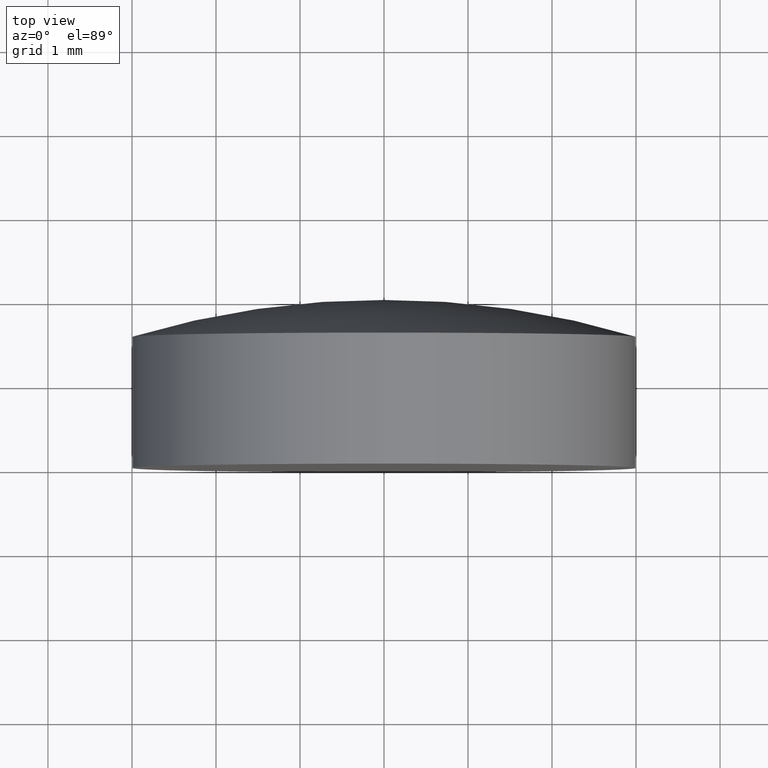
[diagram: clean part render]
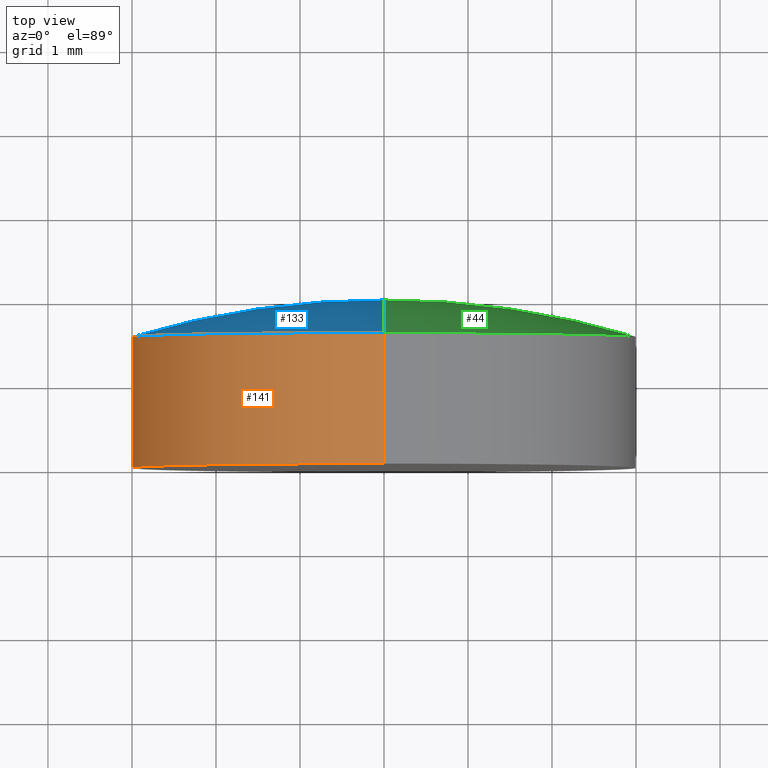
[diagram: same view with three faces highlighted in distinct colors, each labeled with its STEP entity id]
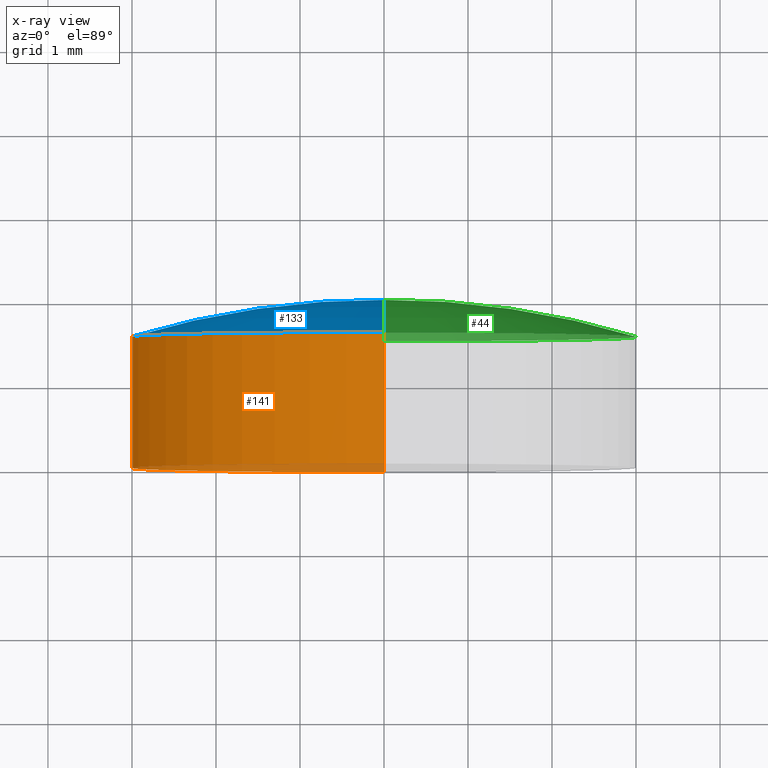
[diagram: x-ray of the same camera — body ghosted, the three highlighted faces saturated]
A machine part, top view with three faces highlighted in distinct colors.
The next image is the same camera in x-ray (body ghosted, the three faces saturated) — at least one of them is partly hidden behind the body in this view.
Their STEP definitions:

[orange] entity #141 — the highlighted cylindrical surface (partial cylindrical patch) has radius 3 mm, axis along (-0, 1, -0).
#17 = AXIS2_PLACEMENT_3D ( 'NONE', #76, #127, #129 ) ;
#19 = EDGE_LOOP ( 'NONE', ( #145, #34, #32, #31 ) ) ;
#22 = CARTESIAN_POINT ( 'NONE',  ( 0.000000000000000000, 1.559999999999999387, 2.999999999999999112 ) ) ;
#27 = EDGE_CURVE ( 'NONE', #29, #86, #192, .T. ) ;
#29 = VERTEX_POINT ( 'NONE', #190 ) ;
#31 = ORIENTED_EDGE ( 'NONE', *, *, #27, .F. ) ;
#32 = ORIENTED_EDGE ( 'NONE', *, *, #51, .T. ) ;
#34 = ORIENTED_EDGE ( 'NONE', *, *, #62, .T. ) ;
#35 = DIRECTION ( 'NONE',  ( -0.000000000000000000, 1.000000000000000000, -0.000000000000000000 ) ) ;
#40 = CARTESIAN_POINT ( 'NONE',  ( 3.673940397442059868E-16, -4.336808689942017736E-16, -3.000000000000000000 ) ) ;
#51 = EDGE_CURVE ( 'NONE', #111, #86, #71, .T. ) ;
#62 = EDGE_CURVE ( 'NONE', #167, #111, #197, .T. ) ;
#70 = DIRECTION ( 'NONE',  ( 0.000000000000000000, 0.000000000000000000, 1.000000000000000000 ) ) ;
#71 = LINE ( 'NONE', #155, #143 ) ;
#73 = AXIS2_PLACEMENT_3D ( 'NONE', #171, #35, #70 ) ;
#74 = CARTESIAN_POINT ( 'NONE',  ( 3.673940397442059868E-16, 2.000000000000000000, -3.000000000000000000 ) ) ;
#76 = CARTESIAN_POINT ( 'NONE',  ( 0.000000000000000000, 2.000000000000000000, 0.000000000000000000 ) ) ;
#82 = EDGE_CURVE ( 'NONE', #167, #29, #172, .T. ) ;
#86 = VERTEX_POINT ( 'NONE', #22 ) ;
#87 = DIRECTION ( 'NONE',  ( -0.000000000000000000, 1.000000000000000000, -0.000000000000000000 ) ) ;
#105 = DIRECTION ( 'NONE',  ( -0.000000000000000000, 1.000000000000000000, -0.000000000000000000 ) ) ;
#111 = VERTEX_POINT ( 'NONE', #139 ) ;
#120 = DIRECTION ( 'NONE',  ( 0.000000000000000000, 0.000000000000000000, 1.000000000000000000 ) ) ;
#126 = FACE_OUTER_BOUND ( 'NONE', #19, .T. ) ;
#127 = DIRECTION ( 'NONE',  ( -0.000000000000000000, 1.000000000000000000, -0.000000000000000000 ) ) ;
#129 = DIRECTION ( 'NONE',  ( 0.000000000000000000, 0.000000000000000000, 1.000000000000000000 ) ) ;
#137 = CARTESIAN_POINT ( 'NONE',  ( 0.000000000000000000, 1.559999999999999609, 0.000000000000000000 ) ) ;
#139 = CARTESIAN_POINT ( 'NONE',  ( 0.000000000000000000, -4.336808689942017736E-16, 3.000000000000000000 ) ) ;
#141 = ADVANCED_FACE ( 'NONE', ( #126 ), #178, .T. ) ;
#143 = VECTOR ( 'NONE', #188, 1000.000000000000000 ) ;
#145 = ORIENTED_EDGE ( 'NONE', *, *, #82, .F. ) ;
#155 = CARTESIAN_POINT ( 'NONE',  ( 0.000000000000000000, 2.000000000000000000, 3.000000000000000000 ) ) ;
#167 = VERTEX_POINT ( 'NONE', #40 ) ;
#171 = CARTESIAN_POINT ( 'NONE',  ( 0.000000000000000000, -4.336808689942017736E-16, 0.000000000000000000 ) ) ;
#172 = LINE ( 'NONE', #74, #184 ) ;
#178 = CYLINDRICAL_SURFACE ( 'NONE', #17, 3.000000000000000000 ) ;
#184 = VECTOR ( 'NONE', #105, 1000.000000000000000 ) ;
#188 = DIRECTION ( 'NONE',  ( -0.000000000000000000, 1.000000000000000000, -0.000000000000000000 ) ) ;
#190 = CARTESIAN_POINT ( 'NONE',  ( 3.673940397442058882E-16, 1.559999999999999387, -2.999999999999999112 ) ) ;
#192 = CIRCLE ( 'NONE', #200, 3.000000000000000000 ) ;
#197 = CIRCLE ( 'NONE', #73, 3.000000000000000000 ) ;
#200 = AXIS2_PLACEMENT_3D ( 'NONE', #137, #87, #120 ) ;

[blue] entity #133 — the highlighted toroidal blend (fillet) surface has major radius 0.0128 mm and minor (blend) radius 10.36 mm.
#16 = EDGE_CURVE ( 'NONE', #29, #68, #102, .T. ) ;
#22 = CARTESIAN_POINT ( 'NONE',  ( 0.000000000000000000, 1.559999999999999387, 2.999999999999999112 ) ) ;
#27 = EDGE_CURVE ( 'NONE', #29, #86, #192, .T. ) ;
#29 = VERTEX_POINT ( 'NONE', #190 ) ;
#49 = ORIENTED_EDGE ( 'NONE', *, *, #27, .T. ) ;
#50 = AXIS2_PLACEMENT_3D ( 'NONE', #179, #174, #151 ) ;
#52 = CIRCLE ( 'NONE', #81, 10.35999999999999766 ) ;
#53 = EDGE_CURVE ( 'NONE', #86, #68, #52, .T. ) ;
#54 = DIRECTION ( 'NONE',  ( -1.000000000000000000, 0.000000000000000000, 0.000000000000000000 ) ) ;
#68 = VERTEX_POINT ( 'NONE', #122 ) ;
#75 = FACE_OUTER_BOUND ( 'NONE', #135, .T. ) ;
#81 = AXIS2_PLACEMENT_3D ( 'NONE', #90, #54, #173 ) ;
#86 = VERTEX_POINT ( 'NONE', #22 ) ;
#87 = DIRECTION ( 'NONE',  ( -0.000000000000000000, 1.000000000000000000, -0.000000000000000000 ) ) ;
#90 = CARTESIAN_POINT ( 'NONE',  ( 0.000000000000000000, -8.359992091227860911, 0.01280115995324552884 ) ) ;
#91 = DIRECTION ( 'NONE',  ( 1.224646799147353207E-16, 0.000000000000000000, -1.000000000000000000 ) ) ;
#100 = ORIENTED_EDGE ( 'NONE', *, *, #16, .F. ) ;
#102 = CIRCLE ( 'NONE', #160, 10.35999999999999766 ) ;
#115 = ORIENTED_EDGE ( 'NONE', *, *, #53, .T. ) ;
#118 = DIRECTION ( 'NONE',  ( 1.000000000000000000, 0.000000000000000000, 1.224646799147353207E-16 ) ) ;
#120 = DIRECTION ( 'NONE',  ( 0.000000000000000000, 0.000000000000000000, 1.000000000000000000 ) ) ;
#122 = CARTESIAN_POINT ( 'NONE',  ( 0.000000000000000000, 2.000000000000000000, 0.000000000000000000 ) ) ;
#133 = ADVANCED_FACE ( 'NONE', ( #75 ), #142, .T. ) ;
#135 = EDGE_LOOP ( 'NONE', ( #100, #49, #115 ) ) ;
#137 = CARTESIAN_POINT ( 'NONE',  ( 0.000000000000000000, 1.559999999999999609, 0.000000000000000000 ) ) ;
#142 = TOROIDAL_SURFACE ( 'NONE', #50, 0.01280115995324552884, 10.35999999999999766 ) ;
#151 = DIRECTION ( 'NONE',  ( 0.000000000000000000, 0.000000000000000000, 1.000000000000000000 ) ) ;
#160 = AXIS2_PLACEMENT_3D ( 'NONE', #169, #118, #91 ) ;
#169 = CARTESIAN_POINT ( 'NONE',  ( 1.567689956211541805E-18, -8.359992091227860911, -0.01280115995324552884 ) ) ;
#173 = DIRECTION ( 'NONE',  ( 0.000000000000000000, 0.000000000000000000, 1.000000000000000000 ) ) ;
#174 = DIRECTION ( 'NONE',  ( -0.000000000000000000, 1.000000000000000000, -0.000000000000000000 ) ) ;
#179 = CARTESIAN_POINT ( 'NONE',  ( 0.000000000000000000, -8.359992091227860911, 0.000000000000000000 ) ) ;
#190 = CARTESIAN_POINT ( 'NONE',  ( 3.673940397442058882E-16, 1.559999999999999387, -2.999999999999999112 ) ) ;
#192 = CIRCLE ( 'NONE', #200, 3.000000000000000000 ) ;
#200 = AXIS2_PLACEMENT_3D ( 'NONE', #137, #87, #120 ) ;

[green] entity #44 — the highlighted toroidal blend (fillet) surface has major radius 0.0128 mm and minor (blend) radius 10.36 mm.
#1 = ORIENTED_EDGE ( 'NONE', *, *, #58, .T. ) ;
#3 = ORIENTED_EDGE ( 'NONE', *, *, #53, .F. ) ;
#15 = EDGE_LOOP ( 'NONE', ( #1, #113, #3 ) ) ;
#16 = EDGE_CURVE ( 'NONE', #29, #68, #102, .T. ) ;
#22 = CARTESIAN_POINT ( 'NONE',  ( 0.000000000000000000, 1.559999999999999387, 2.999999999999999112 ) ) ;
#24 = AXIS2_PLACEMENT_3D ( 'NONE', #72, #149, #148 ) ;
#29 = VERTEX_POINT ( 'NONE', #190 ) ;
#37 = CARTESIAN_POINT ( 'NONE',  ( 0.000000000000000000, 1.559999999999999609, 0.000000000000000000 ) ) ;
#44 = ADVANCED_FACE ( 'NONE', ( #89 ), #119, .T. ) ;
#52 = CIRCLE ( 'NONE', #81, 10.35999999999999766 ) ;
#53 = EDGE_CURVE ( 'NONE', #86, #68, #52, .T. ) ;
#54 = DIRECTION ( 'NONE',  ( -1.000000000000000000, 0.000000000000000000, 0.000000000000000000 ) ) ;
#55 = DIRECTION ( 'NONE',  ( -0.000000000000000000, 1.000000000000000000, -0.000000000000000000 ) ) ;
#57 = DIRECTION ( 'NONE',  ( 0.000000000000000000, 0.000000000000000000, 1.000000000000000000 ) ) ;
#58 = EDGE_CURVE ( 'NONE', #86, #29, #59, .T. ) ;
#59 = CIRCLE ( 'NONE', #165, 3.000000000000000000 ) ;
#68 = VERTEX_POINT ( 'NONE', #122 ) ;
#72 = CARTESIAN_POINT ( 'NONE',  ( 0.000000000000000000, -8.359992091227860911, 0.000000000000000000 ) ) ;
#81 = AXIS2_PLACEMENT_3D ( 'NONE', #90, #54, #173 ) ;
#86 = VERTEX_POINT ( 'NONE', #22 ) ;
#89 = FACE_OUTER_BOUND ( 'NONE', #15, .T. ) ;
#90 = CARTESIAN_POINT ( 'NONE',  ( 0.000000000000000000, -8.359992091227860911, 0.01280115995324552884 ) ) ;
#91 = DIRECTION ( 'NONE',  ( 1.224646799147353207E-16, 0.000000000000000000, -1.000000000000000000 ) ) ;
#102 = CIRCLE ( 'NONE', #160, 10.35999999999999766 ) ;
#113 = ORIENTED_EDGE ( 'NONE', *, *, #16, .T. ) ;
#118 = DIRECTION ( 'NONE',  ( 1.000000000000000000, 0.000000000000000000, 1.224646799147353207E-16 ) ) ;
#119 = TOROIDAL_SURFACE ( 'NONE', #24, 0.01280115995324552884, 10.35999999999999766 ) ;
#122 = CARTESIAN_POINT ( 'NONE',  ( 0.000000000000000000, 2.000000000000000000, 0.000000000000000000 ) ) ;
#148 = DIRECTION ( 'NONE',  ( 0.000000000000000000, 0.000000000000000000, 1.000000000000000000 ) ) ;
#149 = DIRECTION ( 'NONE',  ( -0.000000000000000000, 1.000000000000000000, -0.000000000000000000 ) ) ;
#160 = AXIS2_PLACEMENT_3D ( 'NONE', #169, #118, #91 ) ;
#165 = AXIS2_PLACEMENT_3D ( 'NONE', #37, #55, #57 ) ;
#169 = CARTESIAN_POINT ( 'NONE',  ( 1.567689956211541805E-18, -8.359992091227860911, -0.01280115995324552884 ) ) ;
#173 = DIRECTION ( 'NONE',  ( 0.000000000000000000, 0.000000000000000000, 1.000000000000000000 ) ) ;
#190 = CARTESIAN_POINT ( 'NONE',  ( 3.673940397442058882E-16, 1.559999999999999387, -2.999999999999999112 ) ) ;